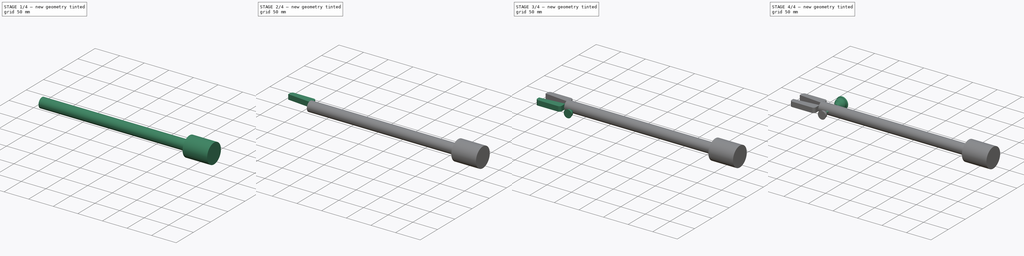
[diagram: build sequence overview — one tinted view per stage of 4, left to right]
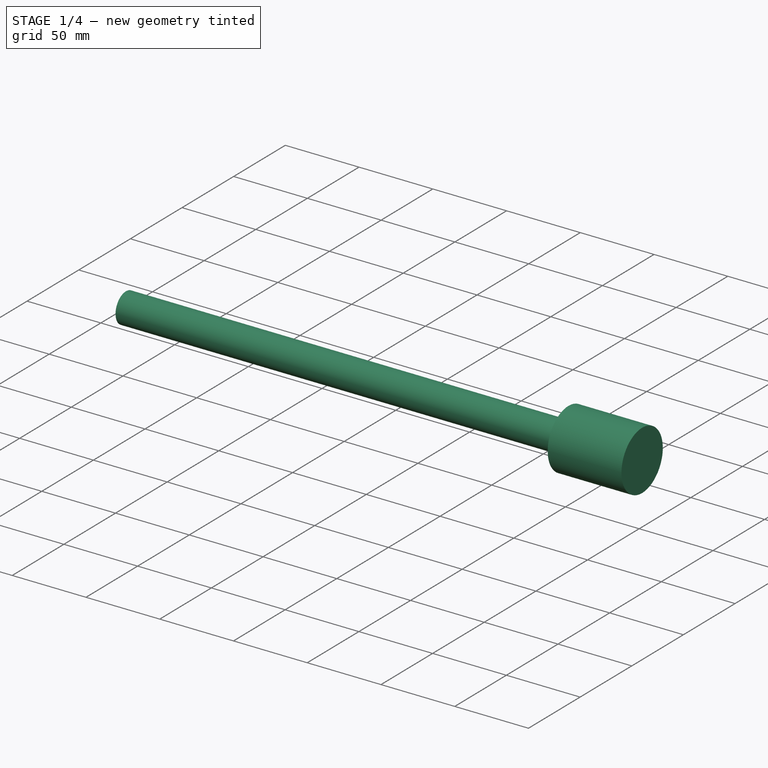
[diagram: stage 1 of 4 — iso view after this stage's code; geometry added in this stage tinted green]
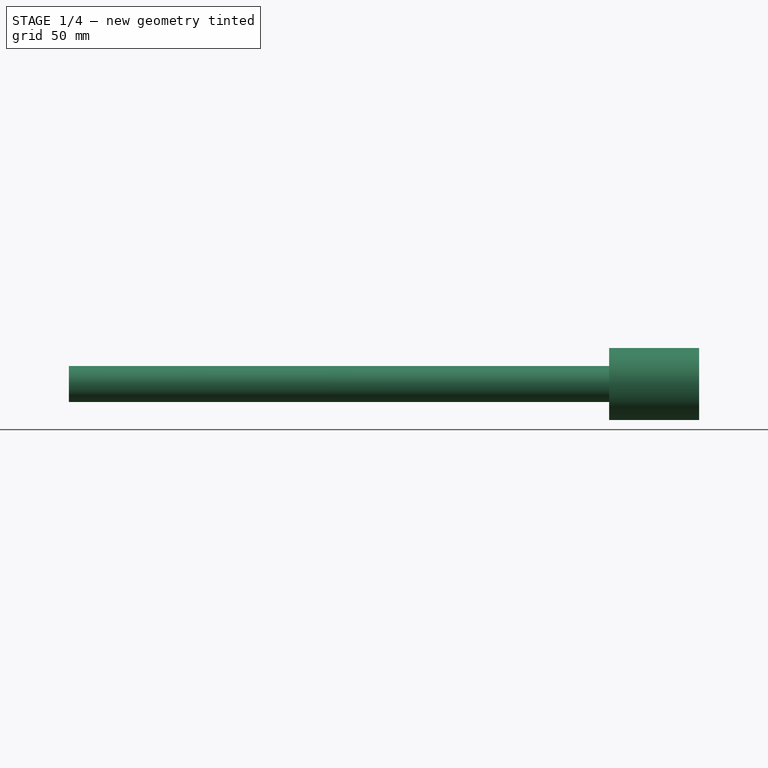
[diagram: stage 1 of 4 — front view after this stage's code; geometry added in this stage tinted green]
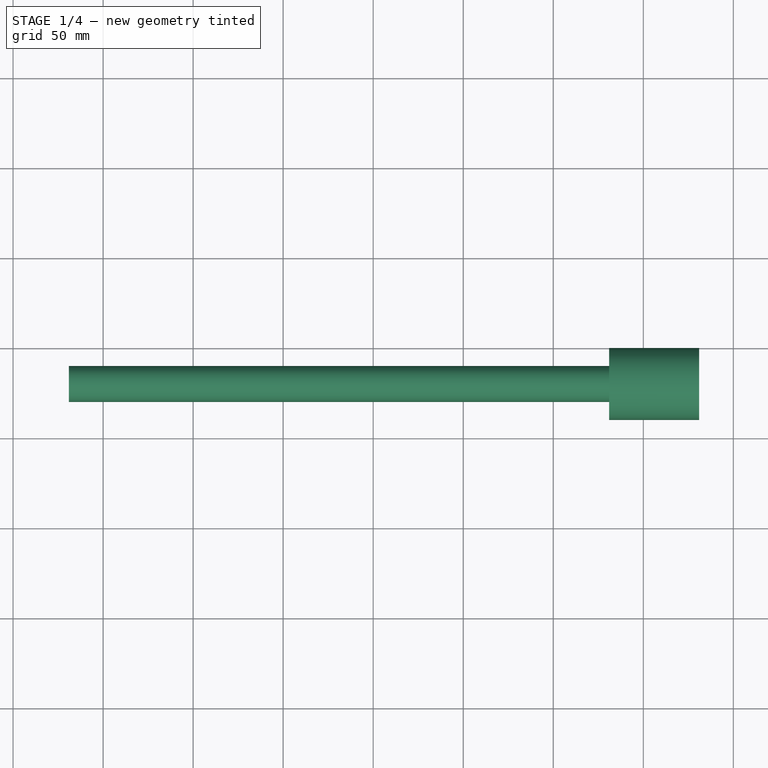
[diagram: stage 1 of 4 — top view after this stage's code; geometry added in this stage tinted green]
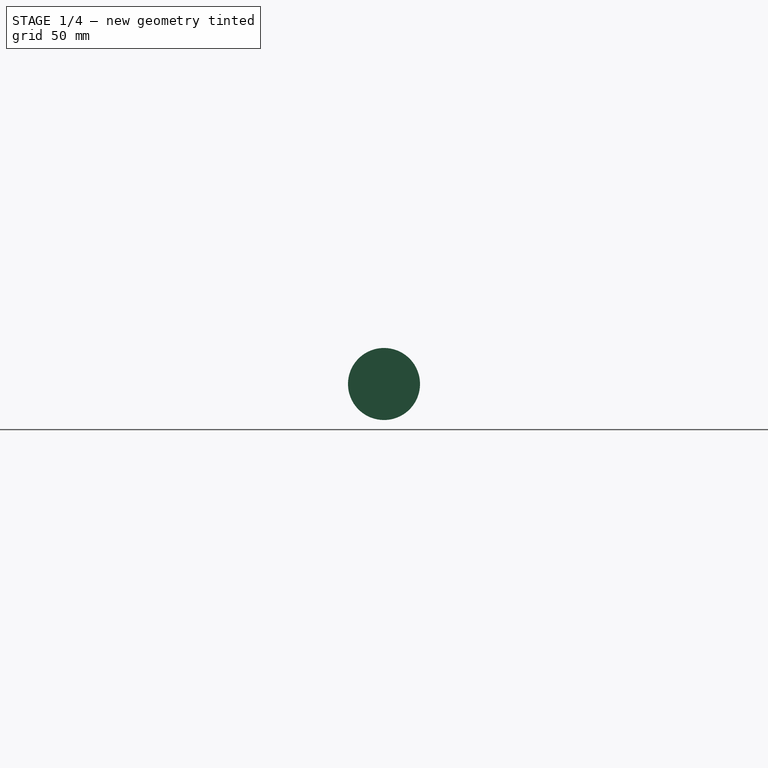
[diagram: stage 1 of 4 — right view after this stage's code; geometry added in this stage tinted green]
FCSTD DOCUMENT  (FreeCAD 0.16R5851 (Git))
Label: gripper
License: All rights reserved
LicenseURL: http://en.wikipedia.org/wiki/All_rights_reserved
objects: Sketcher::SketchObject×9, PartDesign::Pad×6, PartDesign::Fillet×4, Part::Feature×3, PartDesign::Revolution×2, App::DocumentObjectGroup×1, PartDesign::Pocket×1
note: 34 computed .brp shape members not serialized (recipe doc carries the construction recipe); baked Part::Feature solids carry a one-line shape summary decoded from their .brp

FEATURE [Part::Feature] Assieme
  Placement = pos=(30.7679,29.898,47.7806) rot=(0,0,1;0rad)
  shape: bbox 19 x 59.86 x 60.72 mm, 61 faces, 0 solids (baked)
FEATURE [Part::Feature] Assieme001
  Placement = pos=(49.7679,29.898,47.7806) rot=(0,0.991445,0.130526;3.14159rad)
  shape: bbox 22 x 72.11 x 72.95 mm, 41 faces, 0 solids (baked)
FEATURE [Part::Feature] Assieme002
  Placement = pos=(65.5159,29.8979,47.7811) rot=(-0.211541,0.954201,-0.211541;1.61766rad)
  shape: bbox 16.89 x 70.63 x 60.52 mm, 1067 faces, 0 solids (baked)
FEATURE [App::DocumentObjectGroup] Gruppo
FEATURE [Sketcher::SketchObject] Sketch002
  Placement = pos=(31,30,48) rot=(0,-1,0;1.5708rad)
  sketch-geometry (1):
    g0: Circle CenterX=0 CenterY=0 CenterZ=0 NormalX=0 NormalY=0 NormalZ=1 Radius=20
  constraints (2):
    c: Coincident(g0,g-1)
    c: Radius(g0) = 20
FEATURE [PartDesign::Pad] Pad
  Length = 50
  Length2 = 100
  Placement = pos=(31,30,48) rot=(0,-1,0;1.5708rad)
  Sketch = -> Sketch002
  Type = 0
FEATURE [Sketcher::SketchObject] Sketch
  Placement = pos=(-19,30,48) rot=(0,-1,0;1.5708rad)
  Support = -> Pad [Face3]
  sketch-geometry (1):
    g0: Circle CenterX=0 CenterY=0 CenterZ=0 NormalX=0 NormalY=0 NormalZ=1 Radius=10
  constraints (2):
    c: Coincident(g0,g-1)
    c: Radius(g0) = 10
FEATURE [PartDesign::Pad] Pad001
  Length = 300
  Length2 = 100
  Placement = pos=(31,30,48) rot=(0,-1,0;1.5708rad)
  Sketch = -> Sketch
  Type = 0
FEATURE [Sketcher::SketchObject] Sketch009
  Placement = pos=(-319,30,48) rot=(0,-1,0;1.5708rad)
  Support = -> Pad001 [Face5]
  sketch-geometry (1):
    g0: Circle CenterX=0 CenterY=0 CenterZ=0 NormalX=0 NormalY=0 NormalZ=1 Radius=8.5
  constraints (2):
    c: Coincident(g0,g-1)
    c: Radius(g0) = 8.5
FEATURE [PartDesign::Pocket] Pocket
  Length = 50
  Placement = pos=(31,30,48) rot=(0,-1,0;1.5708rad)
  Sketch = -> Sketch009
  Type = 0
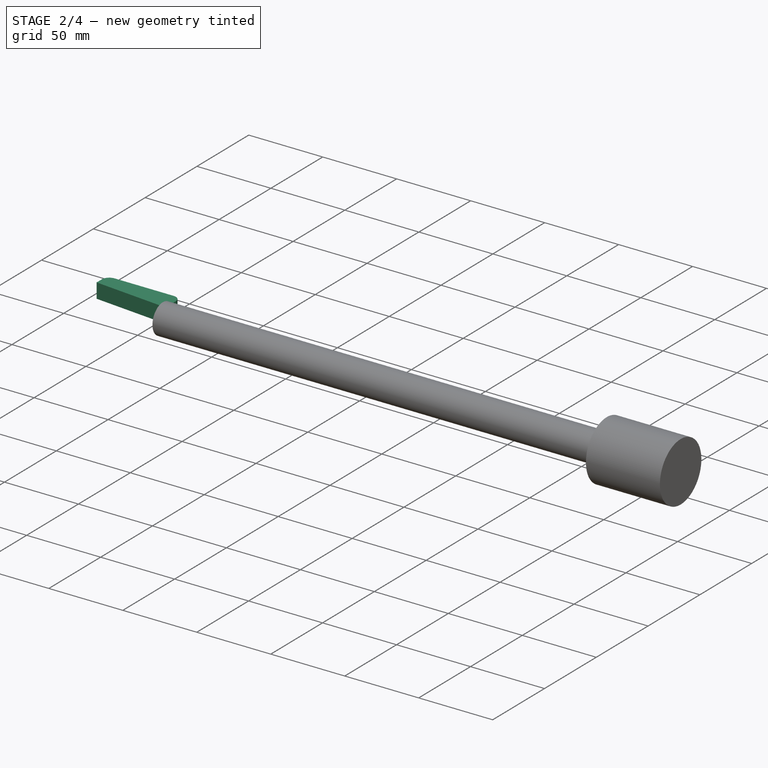
[diagram: stage 2 of 4 — iso view after this stage's code; geometry added in this stage tinted green]
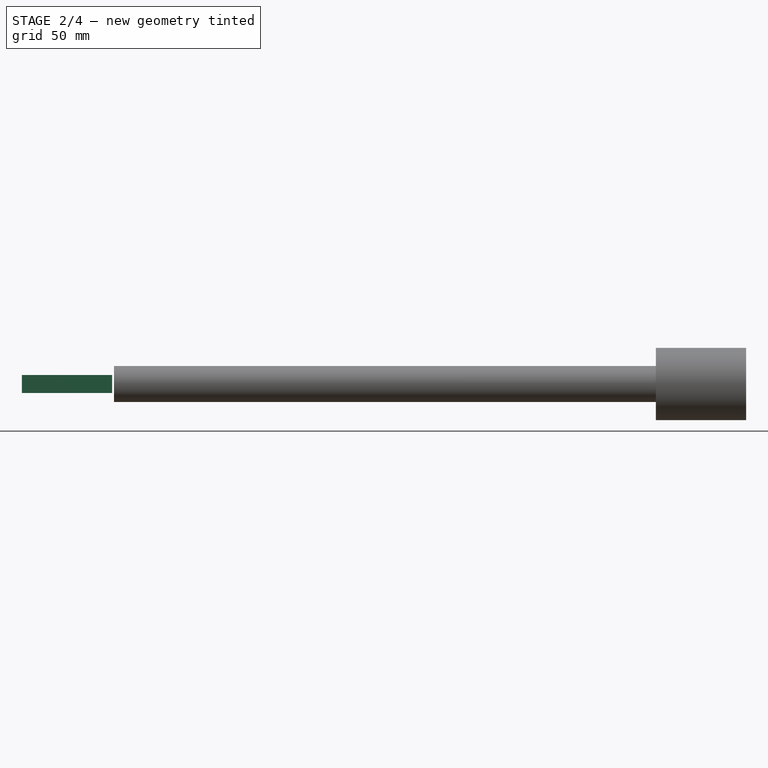
[diagram: stage 2 of 4 — front view after this stage's code; geometry added in this stage tinted green]
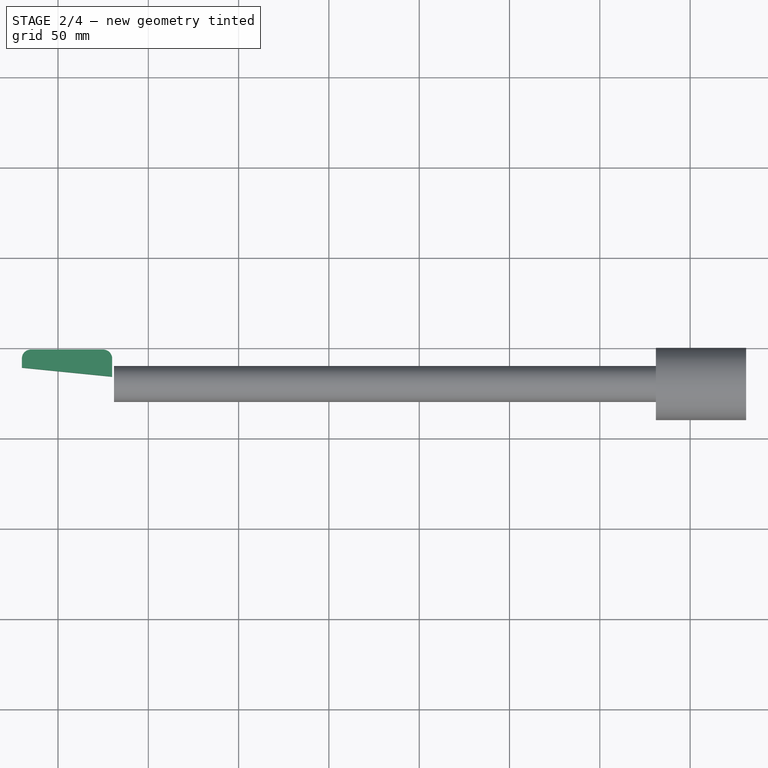
[diagram: stage 2 of 4 — top view after this stage's code; geometry added in this stage tinted green]
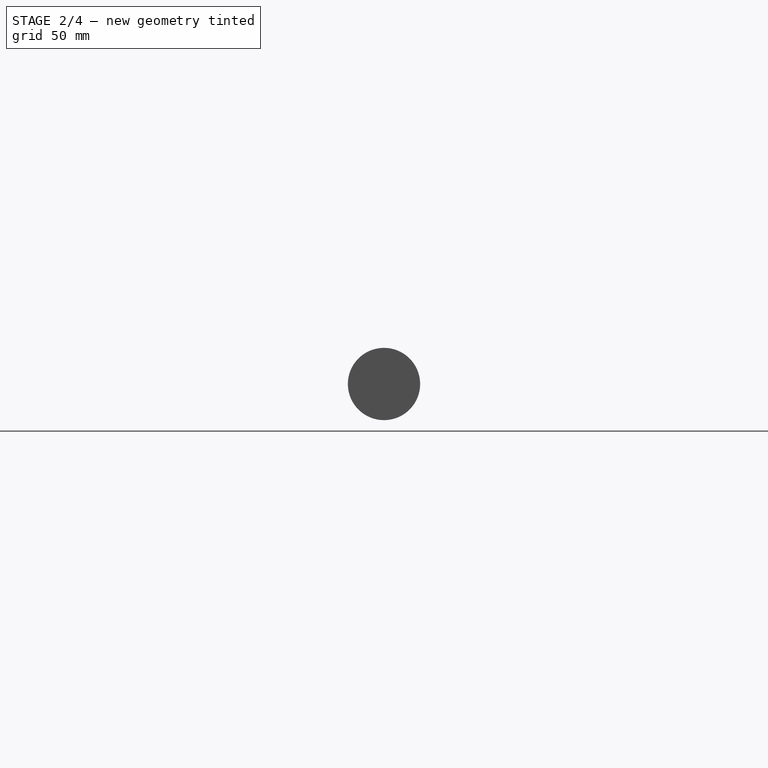
[diagram: stage 2 of 4 — right view after this stage's code; geometry added in this stage tinted green]
FEATURE [Sketcher::SketchObject] Sketch008
  Placement = pos=(-320,49,43) rot=(0,0,1;0rad)
  sketch-geometry (4):
    g0: LineSegment StartX=-50 StartY=-10 StartZ=0 EndX=-50 EndY=0 EndZ=0
    g1: LineSegment StartX=-50 StartY=0 StartZ=0 EndX=0 EndY=0 EndZ=0
    g2: LineSegment StartX=0 StartY=0 StartZ=0 EndX=0 EndY=-15 EndZ=0
    g3: LineSegment StartX=0 StartY=-15 StartZ=0 EndX=-50 EndY=-10 EndZ=0
  constraints (11):
    c: Coincident(g0,g1)
    c: Coincident(g1,g2)
    c: Coincident(g2,g3)
    c: Coincident(g3,g0)
    c: DistanceY(g0) = 10
    c: DistanceY(g2) = -15
    c: DistanceX(g0) = 0
    c: DistanceX(g2) = 0
    c: DistanceX(g1) = 50
    c: Coincident(g1,g-1)
    c: DistanceY(g1) = 0
FEATURE [PartDesign::Pad] Pad005
  Length = 10
  Length2 = 100
  Placement = pos=(-320,49,43) rot=(0,0,1;0rad)
  Sketch = -> Sketch008
  Type = 0
FEATURE [PartDesign::Fillet] Fillet002
  Base = -> Pad005 [Edge2]
  Placement = pos=(-320,49,43) rot=(0,0,1;0rad)
  Radius = 5
FEATURE [PartDesign::Fillet] Fillet003
  Base = -> Fillet002 [Edge15]
  Placement = pos=(-320,49,43) rot=(0,0,1;0rad)
  Radius = 5
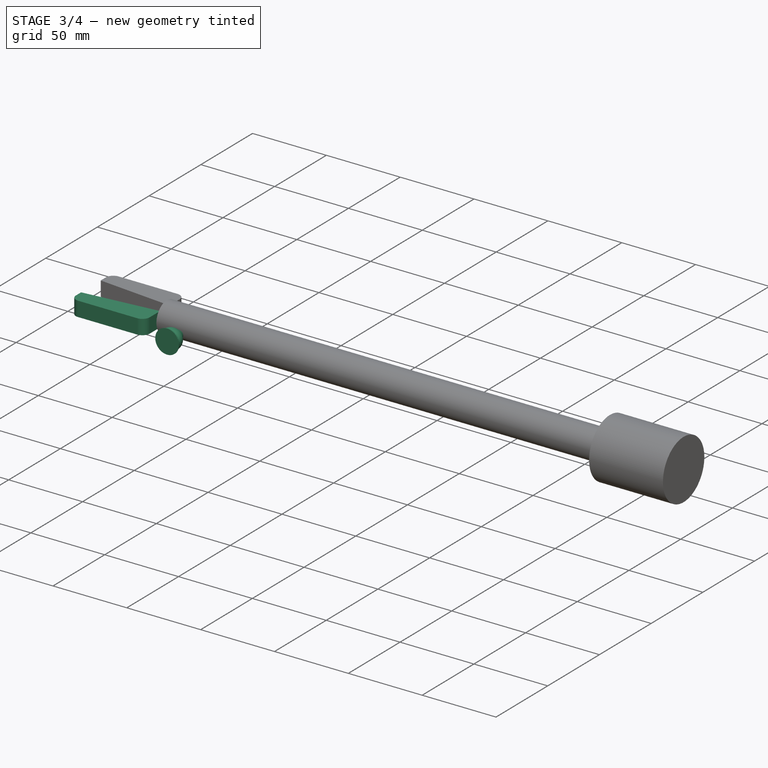
[diagram: stage 3 of 4 — iso view after this stage's code; geometry added in this stage tinted green]
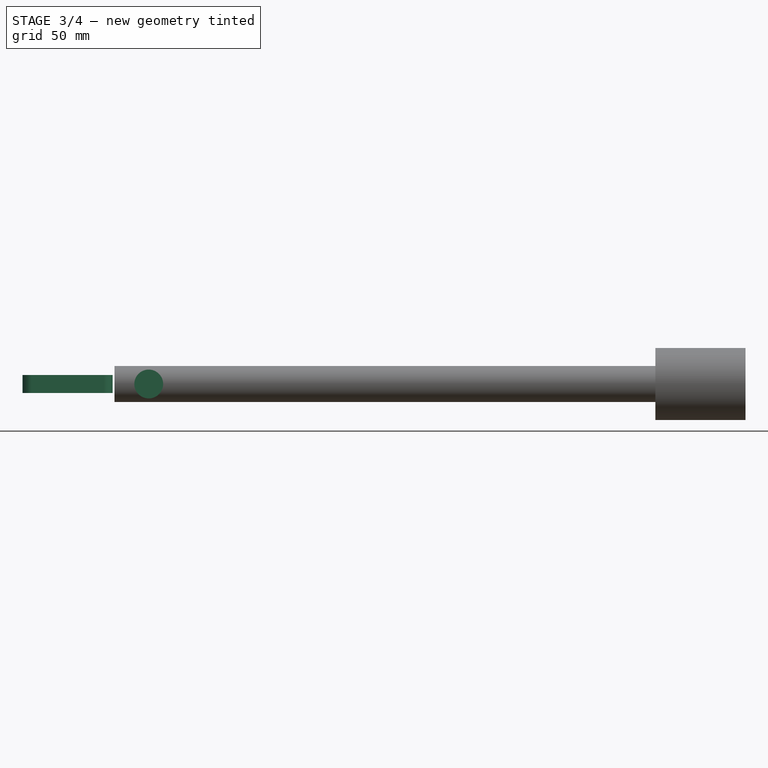
[diagram: stage 3 of 4 — front view after this stage's code; geometry added in this stage tinted green]
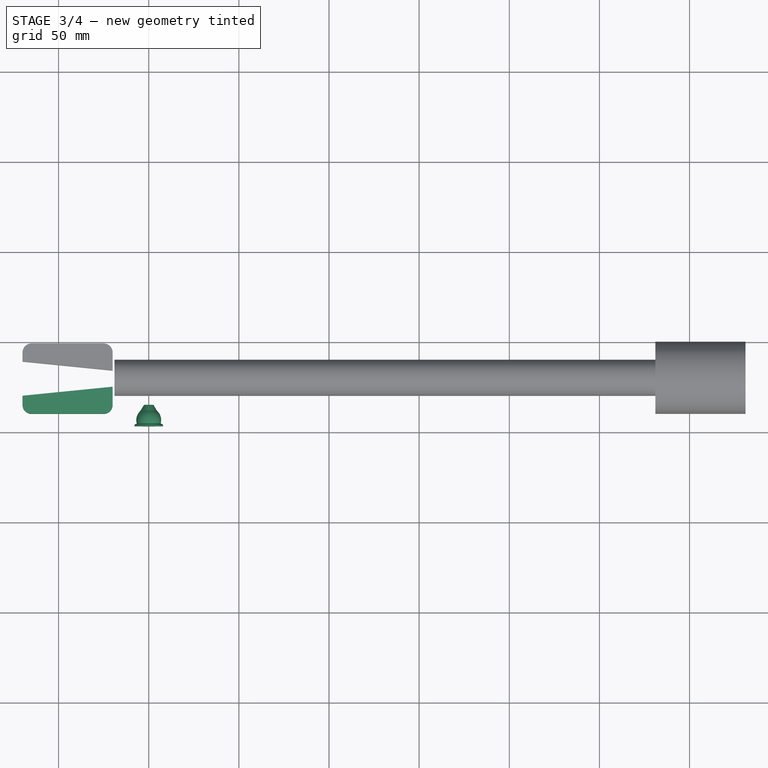
[diagram: stage 3 of 4 — top view after this stage's code; geometry added in this stage tinted green]
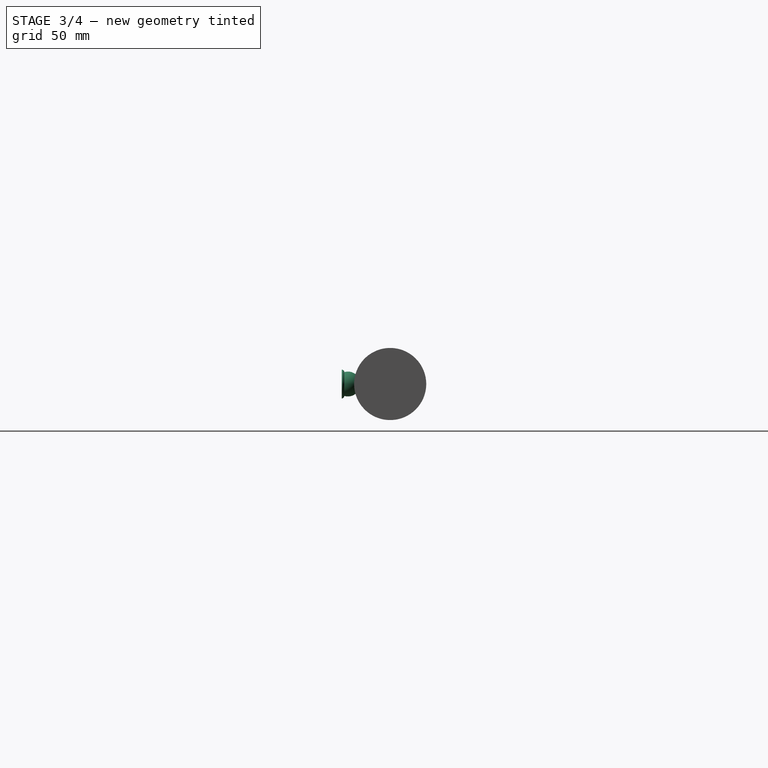
[diagram: stage 3 of 4 — right view after this stage's code; geometry added in this stage tinted green]
FEATURE [Sketcher::SketchObject] Sketch005
  Placement = pos=(-300,15,48) rot=(0,0,1;3.14159rad)
  sketch-geometry (6):
    g0: LineSegment StartX=0 StartY=0 StartZ=0 EndX=2.6 EndY=0 EndZ=0
    g1: LineSegment StartX=2.6 StartY=0 StartZ=0 EndX=4.6 EndY=3.3 EndZ=0
    g2: ArcOfCircle CenterX=0 CenterY=8.43809 CenterZ=0 NormalX=0 NormalY=0 NormalZ=1 Radius=6.89638 StartAngle=5.44259 EndAngle=6.57742
    g3: ArcOfCircle CenterX=6.6 CenterY=11.8381 CenterZ=0 NormalX=0 NormalY=0 NormalZ=1 Radius=1.4 StartAngle=4.71239 EndAngle=6.28319
    g4: LineSegment StartX=8 StartY=11.8381 StartZ=0 EndX=0 EndY=11.8381 EndZ=0
    g5: LineSegment StartX=0 StartY=11.8381 StartZ=0 EndX=0 EndY=0 EndZ=0
  constraints (19):
    c: Coincident(g0,g1)
    c: Coincident(g2,g3)
    c: Coincident(g0,g-1)
    c: PointOnObject(g0,g-1)
    c: Coincident(g1,g2)
    c: DistanceX(g0,g1) = 2
    c: DistanceX(g-1,g1) = 4.6
    c: DistanceX(g-1,g2) = 6.6
    c: DistanceX(g-1,g3) = 8
    c: DistanceY(g-1,g1) = 3.3
    c: DistanceX(g-1,g2) = 0
    c: DistanceX(g3,g2) = 0
    c: DistanceY(g3,g3) = 0
    c: DistanceY(g2,g2) = -2
    c: Coincident(g-1,g5)
    c: Coincident(g4,g5)
    c: Coincident(g4,g3)
    c: DistanceX(g-1,g4) = 0
    c: DistanceY(g4,g3) = 0
FEATURE [PartDesign::Revolution] Revolution001
  Angle = 360
  Axis = (0,-1,0)
  Base = (-300,15,48)
  Placement = pos=(-300,15,48) rot=(0,0,1;3.14159rad)
  ReferenceAxis = -> Sketch005 [V_Axis]
  Reversed = true
  Sketch = -> Sketch005
FEATURE [Sketcher::SketchObject] Sketch007
  Placement = pos=(-320,10,43) rot=(0,0,1;0rad)
  sketch-geometry (4):
    g0: LineSegment StartX=-50 StartY=10 StartZ=0 EndX=-50 EndY=0 EndZ=0
    g1: LineSegment StartX=-50 StartY=0 StartZ=0 EndX=0 EndY=0 EndZ=0
    g2: LineSegment StartX=0 StartY=0 StartZ=0 EndX=0 EndY=15 EndZ=0
    g3: LineSegment StartX=0 StartY=15 StartZ=0 EndX=-50 EndY=10 EndZ=0
  constraints (11):
    c: Coincident(g0,g1)
    c: Coincident(g1,g2)
    c: Coincident(g2,g3)
    c: Coincident(g3,g0)
    c: DistanceY(g0) = -10
    c: DistanceY(g2) = 15
    c: DistanceX(g0) = 0
    c: DistanceX(g2) = 0
    c: DistanceX(g1) = 50
    c: Coincident(g1,g-1)
    c: DistanceY(g1) = 0
FEATURE [PartDesign::Pad] Pad004
  Length = 10
  Length2 = 100
  Placement = pos=(-320,10,43) rot=(0,0,1;0rad)
  Sketch = -> Sketch007
  Type = 0
FEATURE [PartDesign::Fillet] Fillet
  Base = -> Pad004 [Edge2]
  Placement = pos=(-320,10,43) rot=(0,0,1;0rad)
  Radius = 5
FEATURE [PartDesign::Fillet] Fillet001
  Base = -> Fillet [Edge15]
  Placement = pos=(-320,10,43) rot=(0,0,1;0rad)
  Radius = 5
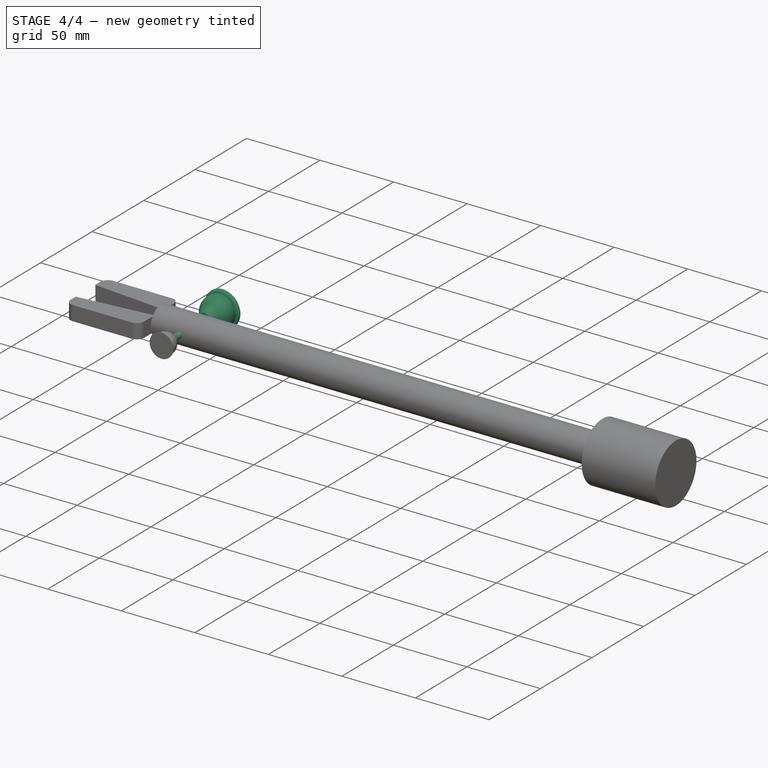
[diagram: stage 4 of 4 — iso view after this stage's code; geometry added in this stage tinted green]
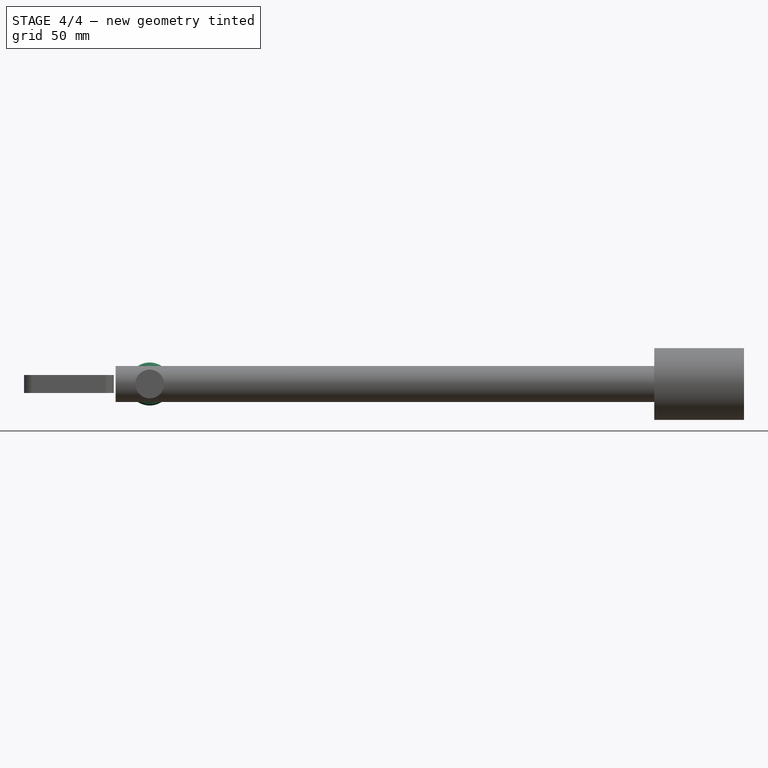
[diagram: stage 4 of 4 — front view after this stage's code; geometry added in this stage tinted green]
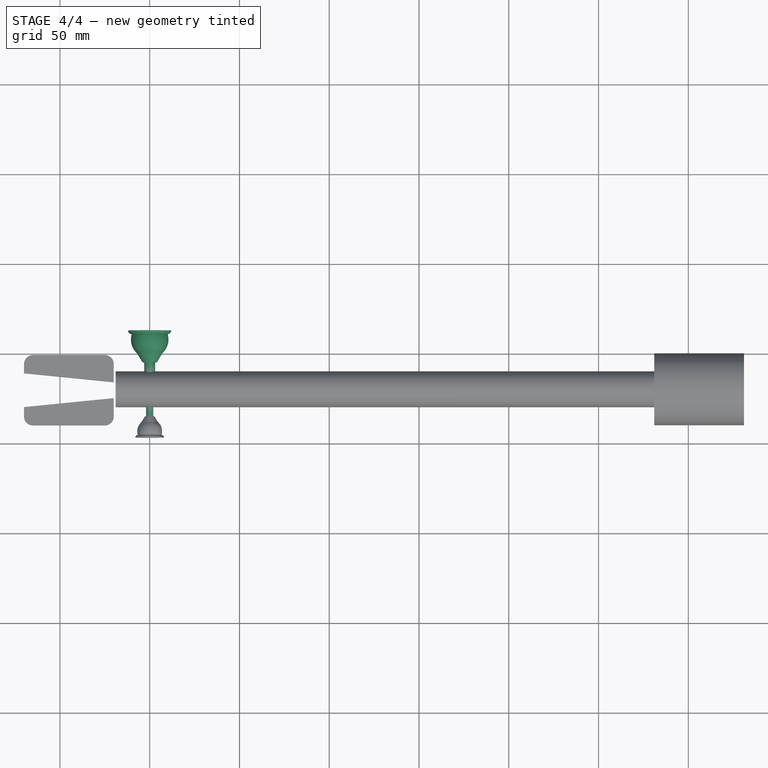
[diagram: stage 4 of 4 — top view after this stage's code; geometry added in this stage tinted green]
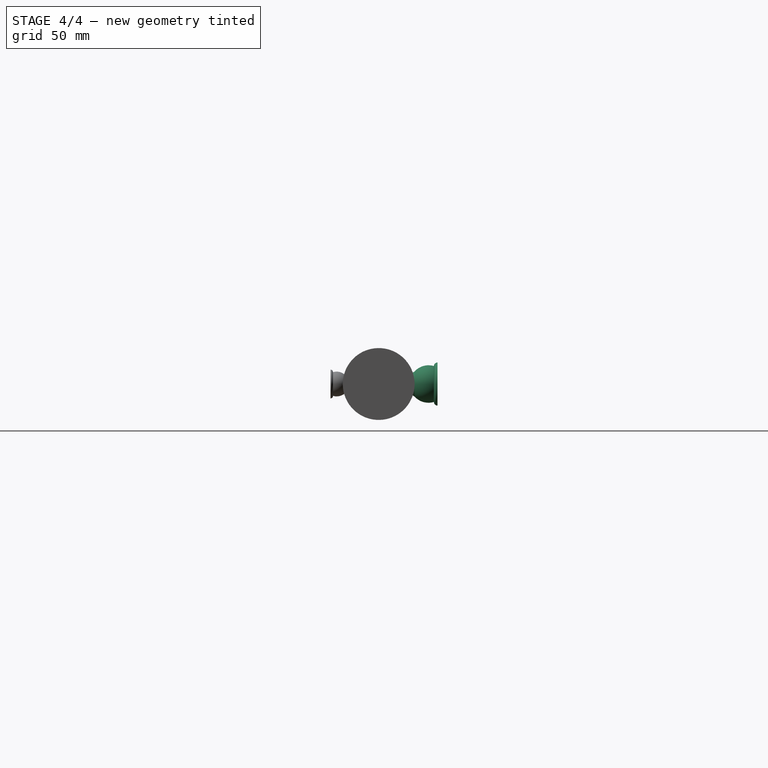
[diagram: stage 4 of 4 — right view after this stage's code; geometry added in this stage tinted green]
FEATURE [Sketcher::SketchObject] Sketch003
  Placement = pos=(-300,45,48) rot=(0,0,1;0rad)
  sketch-geometry (6):
    g0: LineSegment StartX=0 StartY=0 StartZ=0 EndX=4 EndY=0 EndZ=0
    g1: LineSegment StartX=4 StartY=0 StartZ=0 EndX=7 EndY=5 EndZ=0
    g2: ArcOfCircle CenterX=0 CenterY=12.746 CenterZ=0 NormalX=0 NormalY=0 NormalZ=1 Radius=10.4403 StartAngle=5.44724 EndAngle=6.57464
    g3: ArcOfCircle CenterX=10 CenterY=17.746 CenterZ=0 NormalX=0 NormalY=0 NormalZ=1 Radius=2 StartAngle=4.71239 EndAngle=6.28319
    g4: LineSegment StartX=12 StartY=17.746 StartZ=0 EndX=0 EndY=17.746 EndZ=0
    g5: LineSegment StartX=0 StartY=17.746 StartZ=0 EndX=0 EndY=0 EndZ=0
  constraints (19):
    c: Coincident(g0,g1)
    c: Coincident(g2,g3)
    c: Coincident(g0,g-1)
    c: PointOnObject(g0,g-1)
    c: Coincident(g1,g2)
    c: DistanceX(g0,g1) = 3
    c: DistanceX(g-1,g1) = 7
    c: DistanceX(g-1,g2) = 10
    c: DistanceX(g-1,g3) = 12
    c: DistanceY(g-1,g1) = 5
    c: DistanceX(g-1,g2) = 0
    c: DistanceX(g3,g2) = 0
    c: DistanceY(g3,g3) = 0
    c: DistanceY(g2,g2) = -3
    c: Coincident(g-1,g5)
    c: Coincident(g4,g5)
    c: Coincident(g4,g3)
    c: DistanceX(g-1,g4) = 0
    c: DistanceY(g4,g3) = 0
FEATURE [PartDesign::Revolution] Revolution
  Angle = 360
  Axis = (0,1,0)
  Base = (-300,45,48)
  Placement = pos=(-300,45,48) rot=(0,0,1;0rad)
  ReferenceAxis = -> Sketch003 [V_Axis]
  Reversed = true
  Sketch = -> Sketch003
FEATURE [Sketcher::SketchObject] Sketch004
  Placement = pos=(-300,45,48) rot=(1,0,0;1.5708rad)
  Support = -> Revolution [Face1]
  sketch-geometry (1):
    g0: Circle CenterX=0 CenterY=0 CenterZ=0 NormalX=0 NormalY=0 NormalZ=1 Radius=3
  constraints (2):
    c: Coincident(g-1,g0)
    c: Radius(g0) = 3
FEATURE [PartDesign::Pad] Pad002  label="Ventosa_grande"
  Length = 10
  Length2 = 100
  Placement = pos=(-300,45,48) rot=(0,0,1;0rad)
  Sketch = -> Sketch004
  Type = 0
FEATURE [Sketcher::SketchObject] Sketch006
  Placement = pos=(-300,15,48) rot=(0,0.707107,0.707107;3.14159rad)
  Support = -> Revolution001 [Face1]
  sketch-geometry (1):
    g0: Circle CenterX=0 CenterY=0 CenterZ=0 NormalX=0 NormalY=0 NormalZ=1 Radius=2
  constraints (2):
    c: Coincident(g-1,g0)
    c: Radius(g0) = 2
FEATURE [PartDesign::Pad] Pad003  label="Ventosa_piccola"
  Length = 10
  Length2 = 100
  Placement = pos=(-300,15,48) rot=(0,0,1;3.14159rad)
  Sketch = -> Sketch006
  Type = 0
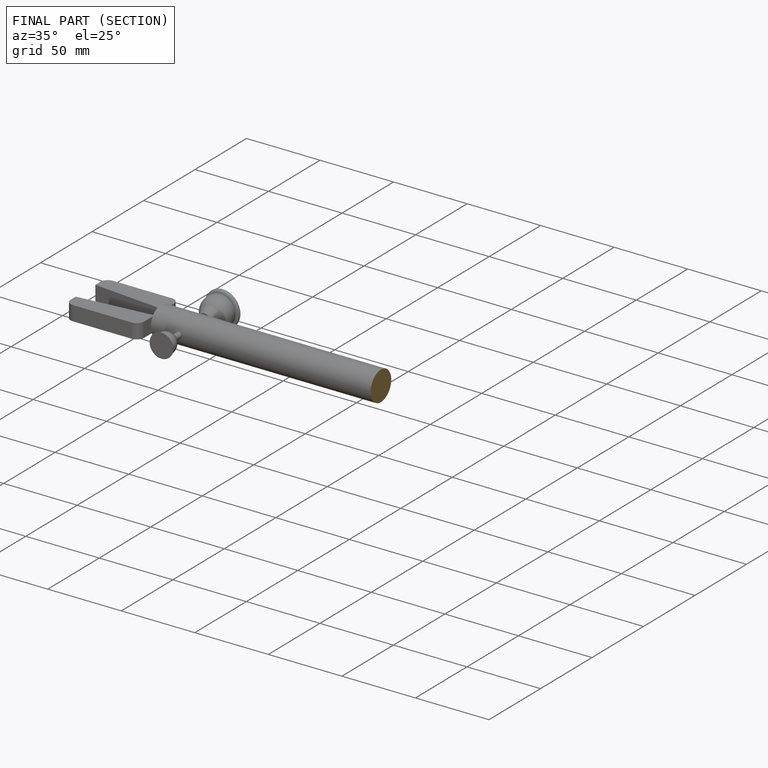
[diagram: finished part — half-section view (interior)]
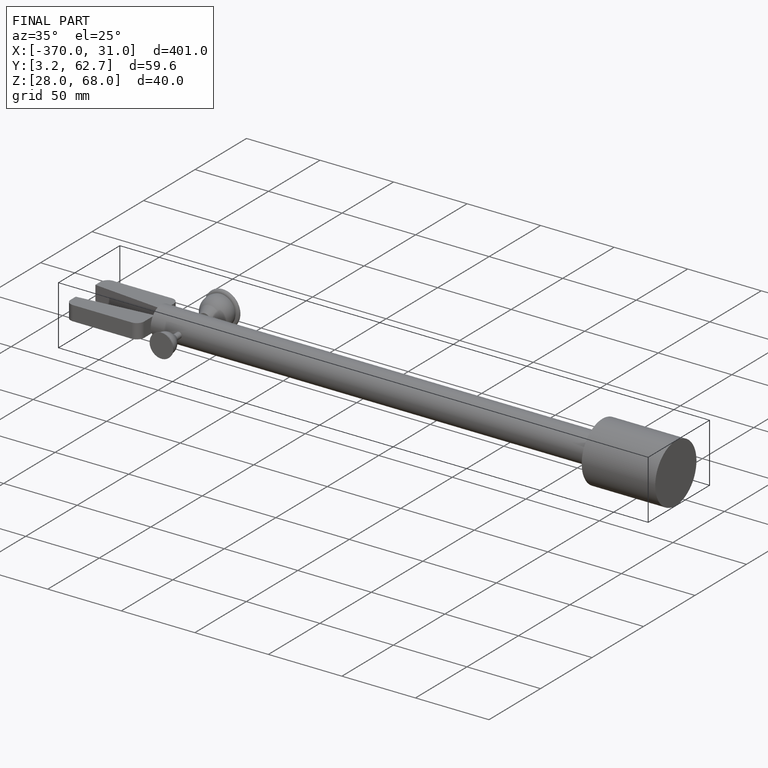
[diagram: finished part — iso view with bounding-box wireframe]
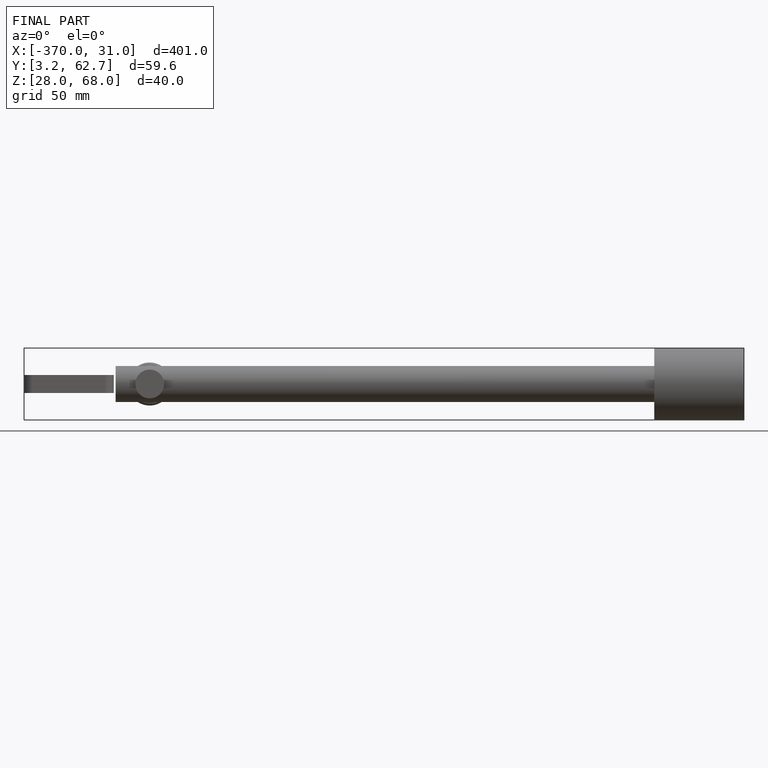
[diagram: finished part — front view with bounding-box wireframe]
